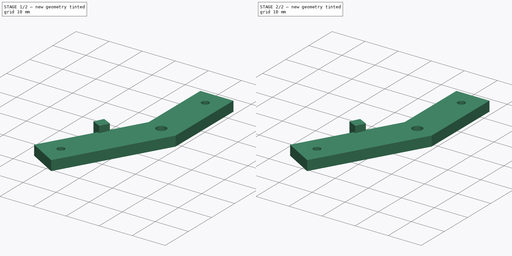
[diagram: build sequence overview — one tinted view per stage of 2, left to right]
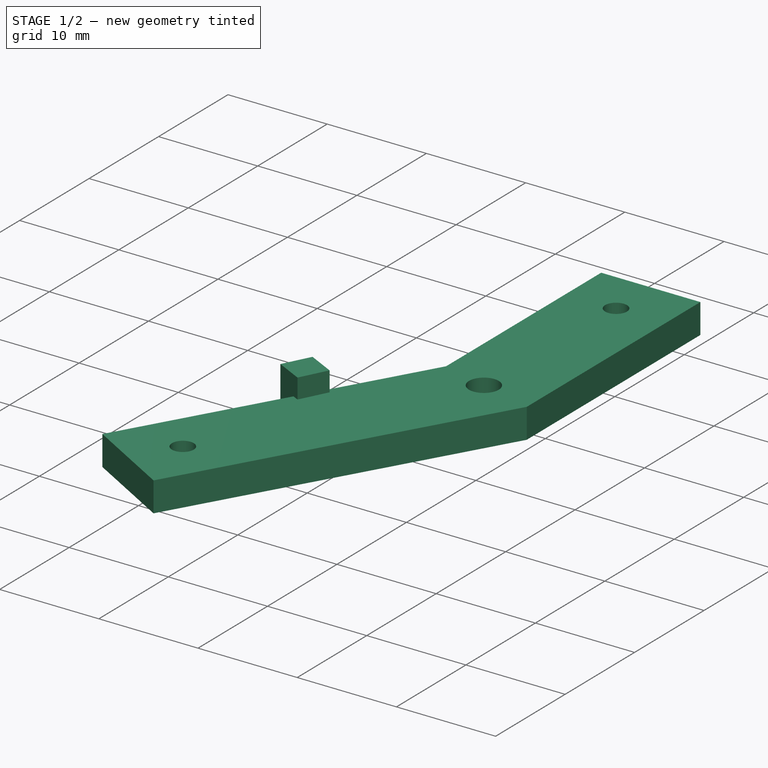
[diagram: stage 1 of 2 — iso view after this stage's code; geometry added in this stage tinted green]
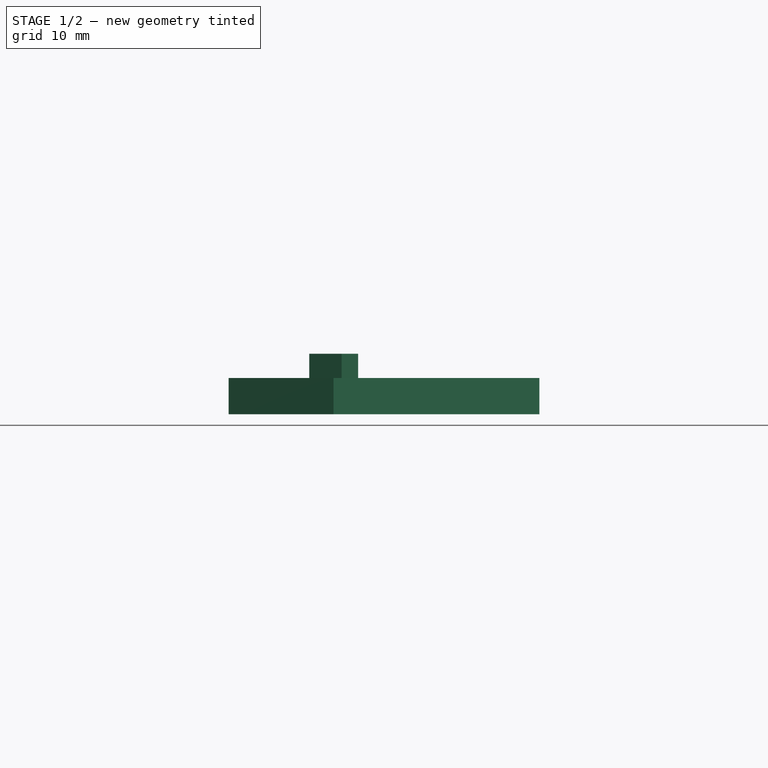
[diagram: stage 1 of 2 — front view after this stage's code; geometry added in this stage tinted green]
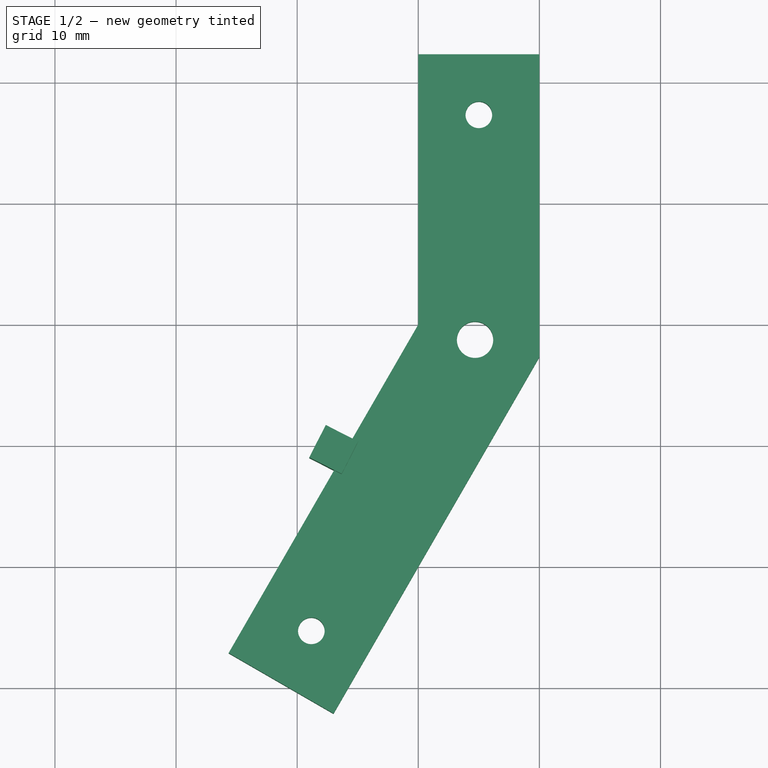
[diagram: stage 1 of 2 — top view after this stage's code; geometry added in this stage tinted green]
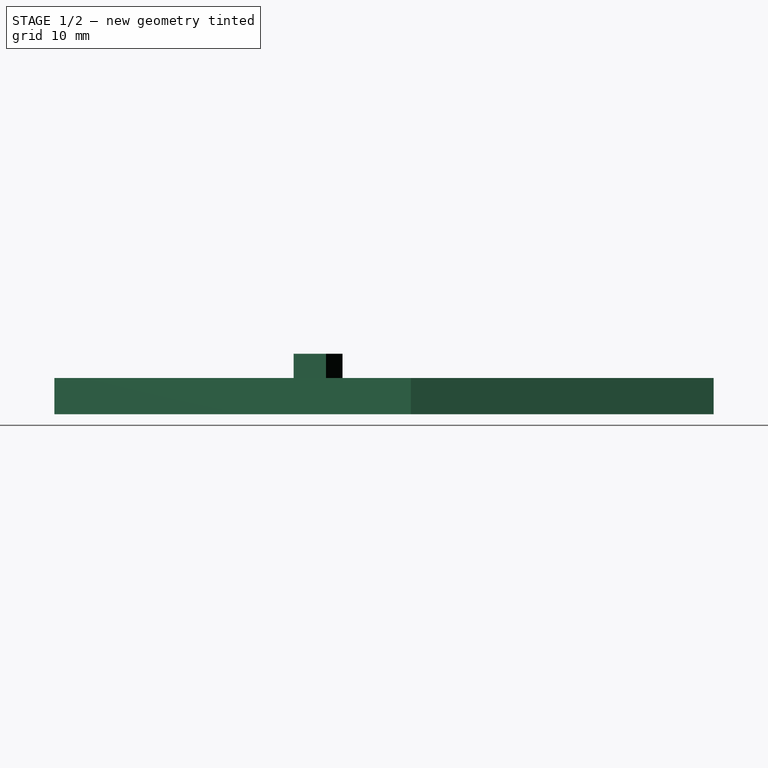
[diagram: stage 1 of 2 — right view after this stage's code; geometry added in this stage tinted green]
FCSTD DOCUMENT  (FreeCAD 0.18R4 (GitTag))
Label: балансир опорного  катка
License: All rights reserved
LicenseURL: http://en.wikipedia.org/wiki/All_rights_reserved
objects: Sketcher::SketchObject×1, PartDesign::Pad×1, PartDesign::Body×1, Part::Box×1, Part::MultiFuse×1
note: 6 computed .brp shape members not serialized (recipe doc carries the construction recipe); baked Part::Feature solids carry a one-line shape summary decoded from their .brp

FEATURE [Sketcher::SketchObject] Sketch
  MapMode = 5
  Support = -> [XY_Plane]
  sketch-geometry (18):
    g0: LineSegment StartX=-5.66025 StartY=-27.1244 StartZ=0 EndX=3 EndY=-32.1244 EndZ=0
    g1: LineSegment StartX=3 StartY=-32.1244 StartZ=0 EndX=20 EndY=-2.67949 EndZ=0
    g2: LineSegment StartX=20 StartY=-2.67949 StartZ=0 EndX=20 EndY=22.3205 EndZ=0
    g3: LineSegment StartX=20 StartY=22.3205 StartZ=0 EndX=10 EndY=22.3205 EndZ=0
    g4: LineSegment StartX=10 StartY=22.3205 StartZ=0 EndX=10 EndY=0 EndZ=0
    g5: LineSegment StartX=10 StartY=0 StartZ=0 EndX=-5.66025 EndY=-27.1244 EndZ=0
    g6: LineSegment [constr] StartX=-1.33013 StartY=-29.6244 StartZ=0 EndX=-5.66025 EndY=-27.1244 EndZ=0
    g7: LineSegment [constr] StartX=-5.66025 StartY=-27.1244 StartZ=0 EndX=-3.16025 EndY=-22.7942 EndZ=0
    g8: LineSegment [constr] StartX=-3.16025 StartY=-22.7942 StartZ=0 EndX=1.16987 EndY=-25.2942 EndZ=0
    g9: LineSegment [constr] StartX=1.16987 StartY=-25.2942 StartZ=0 EndX=-1.33013 EndY=-29.6244 EndZ=0
    g10: LineSegment [constr] StartX=15 StartY=22.3205 StartZ=0 EndX=15 EndY=17.3205 EndZ=0
    g11: LineSegment [constr] StartX=15 StartY=17.3205 StartZ=0 EndX=20 EndY=17.3205 EndZ=0
    g12: LineSegment [constr] StartX=20 StartY=17.3205 StartZ=0 EndX=20 EndY=22.3205 EndZ=0
    g13: LineSegment [constr] StartX=20 StartY=22.3205 StartZ=0 EndX=15 EndY=22.3205 EndZ=0
    g14: Circle CenterX=15 CenterY=17.3205 CenterZ=0 NormalX=0 NormalY=0 NormalZ=1 AngleXU=0 Radius=1.1
    g15: Circle CenterX=1.16987 CenterY=-25.2942 CenterZ=0 NormalX=0 NormalY=0 NormalZ=1 AngleXU=0 Radius=1.1
    g16: LineSegment [constr] StartX=10 StartY=0 StartZ=0 EndX=20 EndY=-2.67949 EndZ=0
    g17: Circle CenterX=14.6874 CenterY=-1.25599 CenterZ=0 NormalX=0 NormalY=0 NormalZ=1 AngleXU=0 Radius=1.5
  constraints (49):
    c: Coincident(g0,g1)
    c: Coincident(g1,g2)
    c: Coincident(g2,g3)
    c: Coincident(g3,g4)
    c: Coincident(g4,g5)
    c: Coincident(g0,g5)
    c: Parallel(g4,g2)
    c: Parallel(g5,g1)
    c: Perpendicular(g5,g0)
    c: Perpendicular(g3,g4)
    c: Distance(g3) = 10
    c: Distance(g0) = 10
    c: Distance(g1) = 34
    c: Distance(g2) = 25
    c: Angle(g4,g5) = 2.61799
    c: Coincident(g6,g7)
    c: Coincident(g7,g8)
    c: Coincident(g8,g9)
    c: Coincident(g10,g11)
    c: Coincident(g11,g12)
    c: Coincident(g12,g13)
    c: Coincident(g10,g13)
    c: Coincident(g6,g9)
    c: Perpendicular(g10,g13)
    c: Perpendicular(g12,g11)
    c: Perpendicular(g13,g12)
    c: Perpendicular(g8,g9)
    c: Perpendicular(g6,g9)
    c: Perpendicular(g7,g8)
    c: Parallel(g6,g0)
    c: Coincident(g0,g6)
    c: Parallel(g13,g3)
    c: Coincident(g2,g12)
    c: Distance(g10) = 5
    c: Distance(g11) = 5
    c: Distance(g8) = 5
    c: Distance(g9) = 5
    c: Coincident(g15,g8)
    c: Coincident(g14,g10)
    c: Parallel(g4,g-2)
    c: PointOnObject(g4,g-1)
    c: Distance(g-1,g4) = 10
    c: PointOnObject(g17,g16)
    c: Coincident(g4,g16)
    c: Coincident(g1,g16)
    c: Distance(g1,g17) = 5.5
    c: Radius(g17) = 1.5
    c: Radius(g14) = 1.1
    c: Radius(g15) = 1.1
FEATURE [PartDesign::Pad] Pad
  Length = 3
  Length2 = 100
  Profile = -> Sketch
  Type = 0
FEATURE [PartDesign::Body] Body
  Group = -> [Sketch,Pad]
  Origin = -> Origin
  Tip = -> Pad
FEATURE [Part::Box] Box  label="Куб"
  AttacherType = Attacher::AttachEngine3D
  Height = 5
  Length = 3
  Placement = pos=(1,-11,0) rot=(0,0,-1;0.471239rad)
  Width = 3
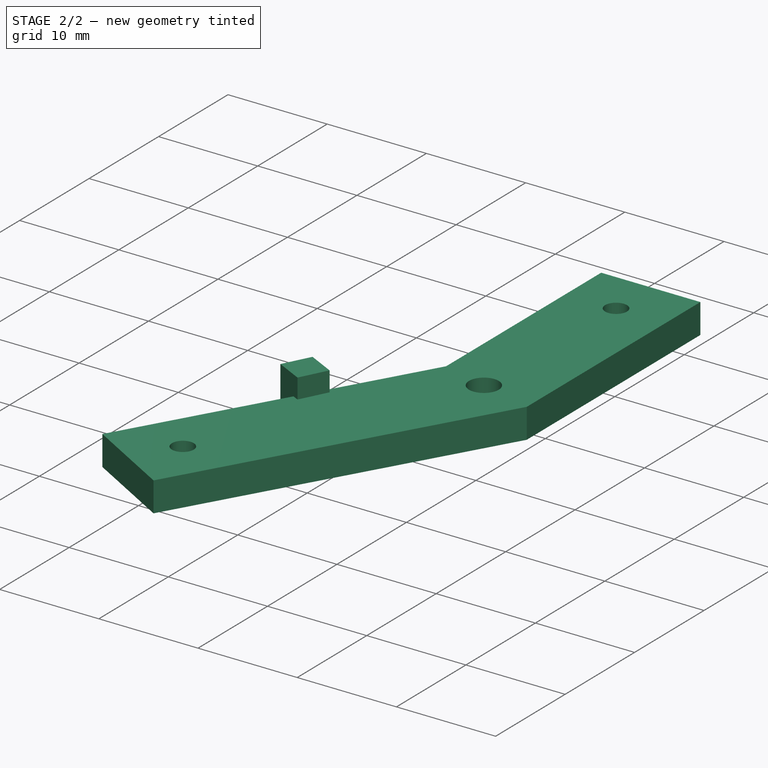
[diagram: stage 2 of 2 — iso view after this stage's code; geometry added in this stage tinted green]
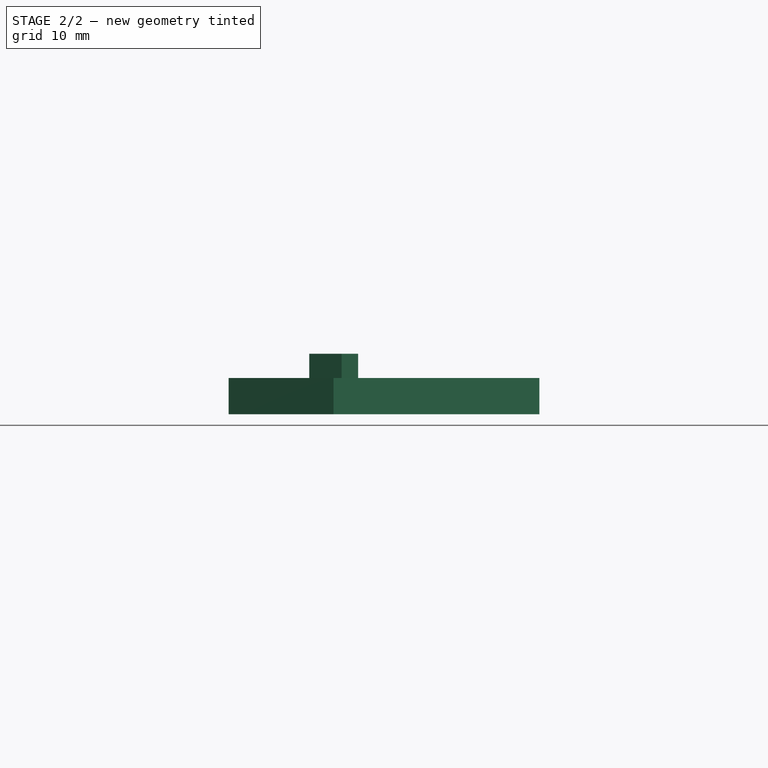
[diagram: stage 2 of 2 — front view after this stage's code; geometry added in this stage tinted green]
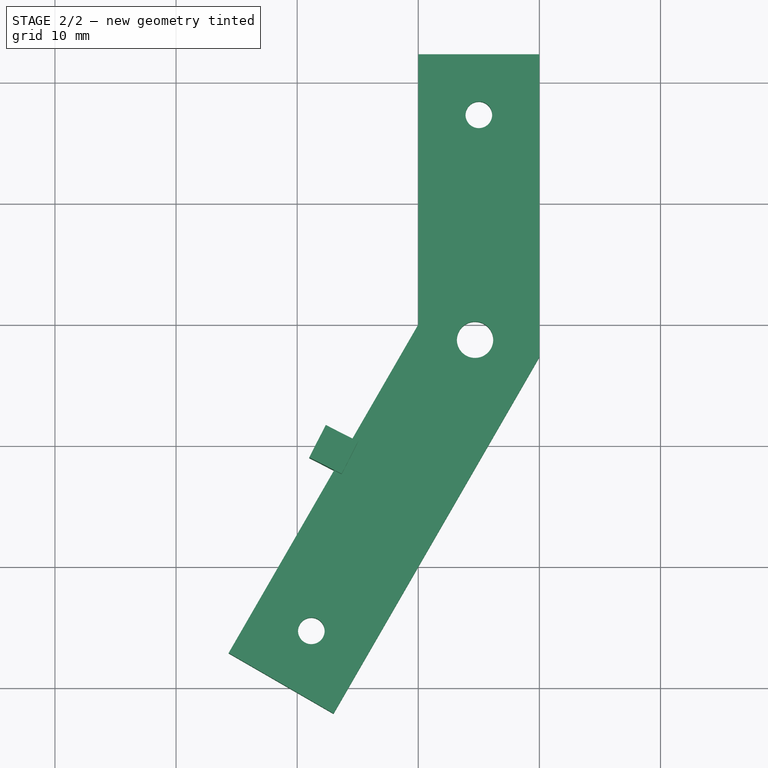
[diagram: stage 2 of 2 — top view after this stage's code; geometry added in this stage tinted green]
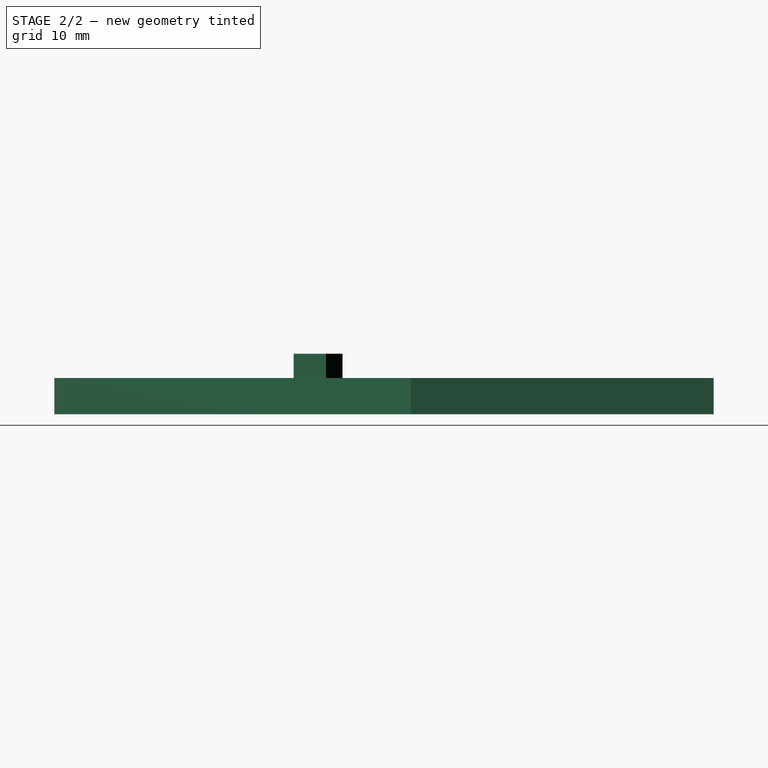
[diagram: stage 2 of 2 — right view after this stage's code; geometry added in this stage tinted green]
FEATURE [Part::MultiFuse] Fusion
  Shapes = -> [Box,Body]
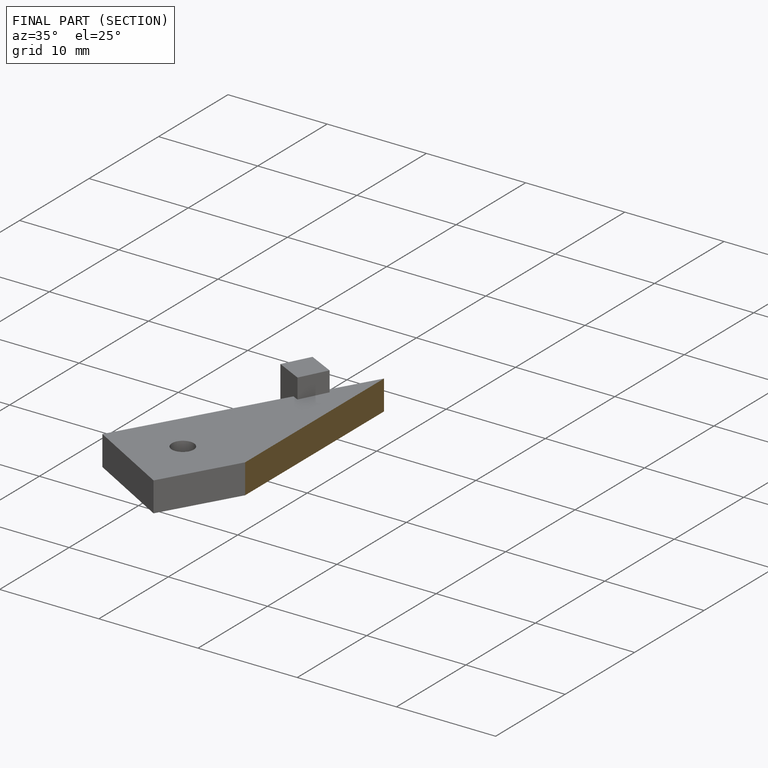
[diagram: finished part — half-section view (interior)]
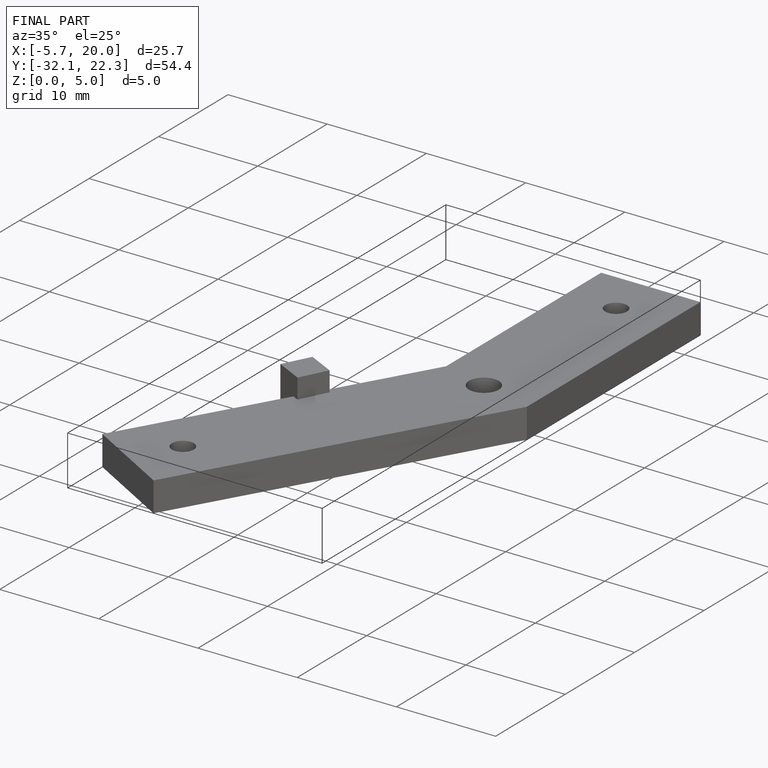
[diagram: finished part — iso view with bounding-box wireframe]
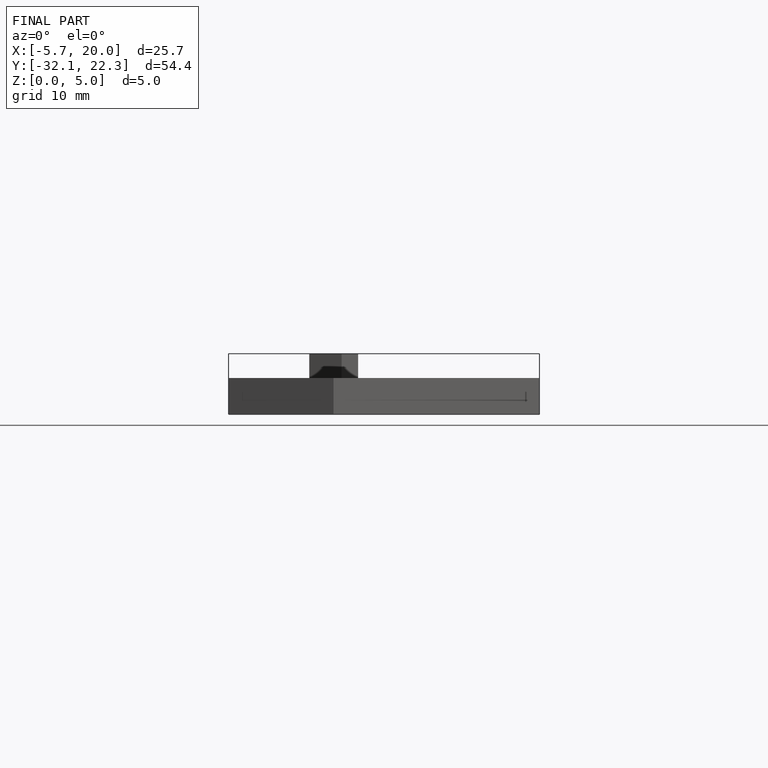
[diagram: finished part — front view with bounding-box wireframe]
